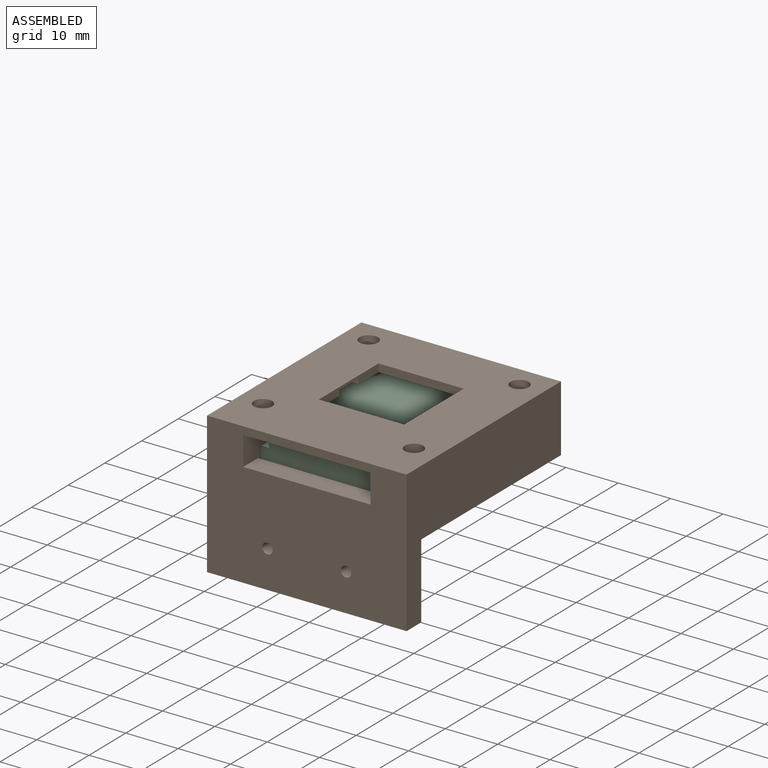
[diagram: assembled view]
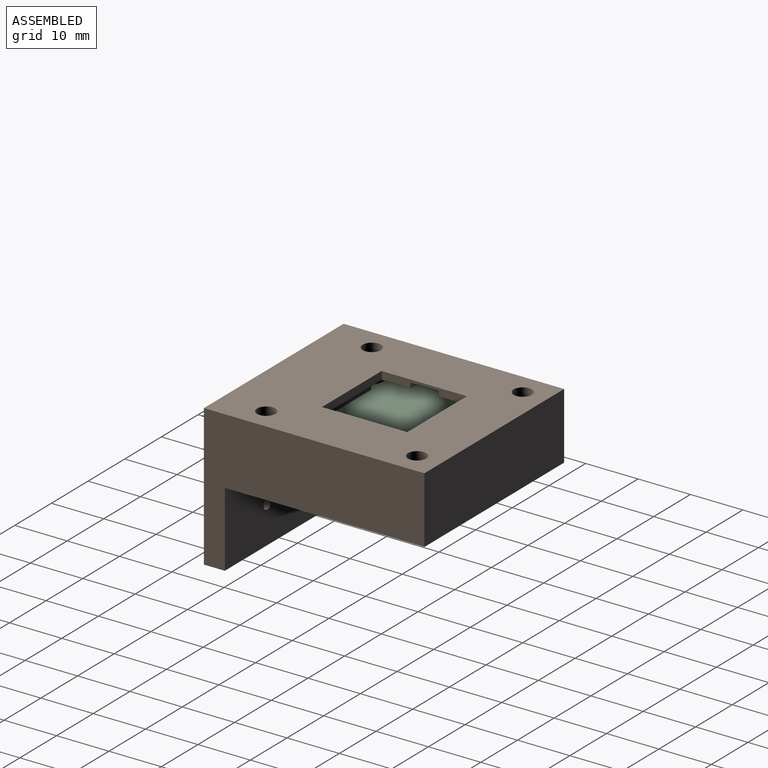
[diagram: assembled view, second angle]
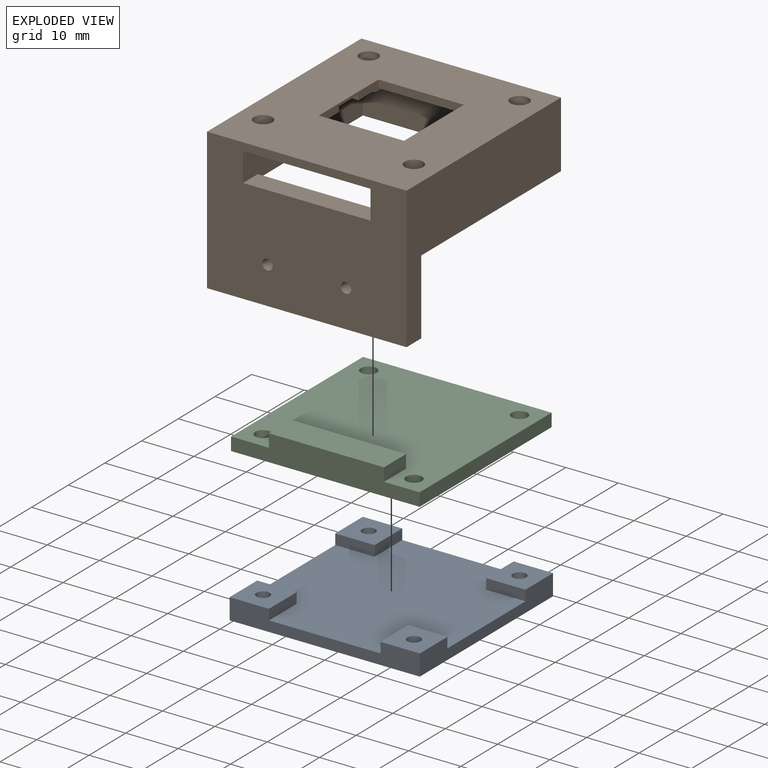
[diagram: exploded view]
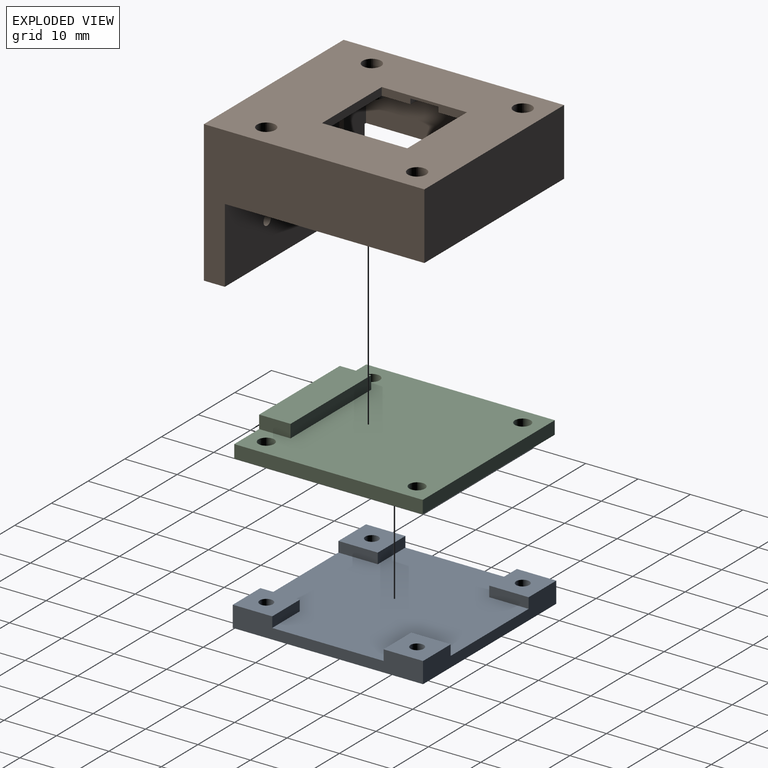
[diagram: exploded view, second angle]
ASSEMBLY  parts=3 mates=2
PART A: 26 faces, bbox 36.3x36.3x4 mm
  f0: plane 36.32x36.32mm, normal (0,0,1), area 1093mm2, adj f1,f2,f3,f4,f6,f7,f11,f13
  f1: plane 36.32x4mm, normal (0,-1,0), area 102.7mm2, adj f0,f2,f4,f5,f6,f9,f13,f14
  f2: plane 36.32x4mm, normal (1,0,0), area 102.7mm2, adj f0,f1,f3,f5,f11,f14,f23,f24
  f3: plane 36.32x4mm, normal (0,1,0), area 102.7mm2, adj f0,f2,f4,f5,f16,f19,f21,f24
  f4: plane 36.32x4mm, normal (-1,0,0), area 102.7mm2, adj f0,f1,f3,f5,f7,f9,f18,f19
  f5: plane 36.32x36.32mm, normal (0,0,-1), area 1319.3mm2, adj f1,f2,f3,f4
  f6: plane 7.52x2mm, normal (1,0,0), area 15mm2, adj f0,f1,f7,f9
  f7: plane 7.52x2mm, normal (0,1,0), area 15mm2, adj f0,f4,f6,f9
  f8: cylinder r=1.25mm len=2.5mm, axis (0,0,-1), area 15.7mm2, adj f9,f10
  f9: plane 7.52x7.52mm, normal (0,0,1), area 51.7mm2, adj f1,f4,f6,f7,f8
  f10: plane 2.5x2.5mm, normal (0,0,1), area 4.9mm2, adj f8
  f11: plane 7.52x2mm, normal (0,1,0), area 15mm2, adj f0,f2,f13,f14
  f12: cylinder r=1.25mm len=2.5mm, axis (0,0,-1), area 15.7mm2, adj f14,f15
  f13: plane 7.52x2mm, normal (-1,0,0), area 15mm2, adj f0,f1,f11,f14
  f14: plane 7.52x7.52mm, normal (0,0,1), area 51.7mm2, adj f1,f2,f11,f12,f13
  f15: plane 2.5x2.5mm, normal (0,0,1), area 4.9mm2, adj f12
  f16: plane 7.52x2mm, normal (1,0,0), area 15mm2, adj f0,f3,f18,f19
  f17: cylinder r=1.25mm len=2.5mm, axis (0,0,-1), area 15.7mm2, adj f19,f20
  f18: plane 7.52x2mm, normal (0,-1,0), area 15mm2, adj f0,f4,f16,f19
  f19: plane 7.52x7.52mm, normal (0,0,1), area 51.7mm2, adj f3,f4,f16,f17,f18
  f20: plane 2.5x2.5mm, normal (0,0,1), area 4.9mm2, adj f17
  f21: plane 7.52x2mm, normal (-1,0,0), area 15mm2, adj f0,f3,f23,f24
  f22: cylinder r=1.25mm len=2.5mm, axis (0,0,-1), area 15.7mm2, adj f24,f25
  f23: plane 7.52x2mm, normal (0,-1,0), area 15mm2, adj f0,f2,f21,f24
  f24: plane 7.52x7.52mm, normal (0,0,1), area 51.7mm2, adj f2,f3,f21,f22,f23
  f25: plane 2.5x2.5mm, normal (0,0,1), area 4.9mm2, adj f22
PART B: 49 faces, bbox 38.1x42.1x27 mm
  f0: plane 7.44x6.01mm, normal (0,1,0), area 44.7mm2, adj f6,f8,f38,f39
  f1: plane 7.44x6.01mm, normal (0,1,0), area 44.7mm2, adj f3,f5,f36,f39
  f2: plane 41.21x36.32mm, normal (0,0,-1), area 1002.1mm2, adj f3,f4,f6,f7,f9,f10,f12,f13
  f3: plane 11.2x8.65mm, normal (1,0,0), area 46.1mm2, adj f1,f2,f5,f32,f39,f43,f44,f45
  f4: plane 3.76x3.76mm, normal (0,1,0), area 14.1mm2, adj f2,f5,f32,f36
  f5: plane 6.01x6.01mm, normal (0,0,-1), area 25.4mm2, adj f1,f3,f4,f31,f32,f36
  f6: plane 11.2x8.65mm, normal (-1,0,0), area 46.1mm2, adj f0,f2,f8,f33,f39,f43,f44,f45
  f7: plane 3.76x3.76mm, normal (0,1,0), area 14.1mm2, adj f2,f8,f33,f38
  f8: plane 6.01x6.01mm, normal (0,0,-1), area 25.4mm2, adj f0,f6,f7,f30,f33,f38
  f9: plane 3.76x3.76mm, normal (0,-1,0), area 14.1mm2, adj f2,f11,f34,f38
  f10: plane 3.76x3.76mm, normal (-1,0,0), area 14.1mm2, adj f2,f11,f34,f37
  f11: plane 6.01x6.01mm, normal (0,0,-1), area 25.4mm2, adj f9,f10,f29,f34,f37,f38
  f12: plane 3.76x3.76mm, normal (0,-1,0), area 14.1mm2, adj f2,f14,f35,f36
  f13: plane 3.76x3.76mm, normal (1,0,0), area 14.1mm2, adj f2,f14,f35,f37
  f14: plane 6.01x6.01mm, normal (0,0,-1), area 25.4mm2, adj f12,f13,f28,f35,f36,f37
  f15: plane 42.1x27.01mm, normal (-1,0,0), area 592.3mm2, adj f17,f39,f42,f44,f45,f46
  f16: plane 42.1x27.01mm, normal (1,0,0), area 592.3mm2, adj f17,f39,f42,f44,f45,f46
  f17: plane 38.1x12.71mm, normal (0,1,0), area 484.2mm2, adj f15,f16,f39,f42
  f18: plane 16.28x1.51mm, normal (1,0,0), area 19.2mm2, adj f2,f19,f21,f22,f27,f41,f42
  f19: plane 1x0.81mm, normal (0,-1,0), area 0.8mm2, adj f2,f18,f20,f41
  f20: cylinder r=2.67mm len=5.33mm, axis (0,0,-1), area 8.4mm2, adj f2,f19,f21,f41
  f21: plane 1x0.81mm, normal (0,1,0), area 0.8mm2, adj f2,f18,f20,f41
  f22: plane 16.28x1.51mm, normal (0,1,0), area 24.6mm2, adj f2,f18,f23,f42
  f23: plane 16.28x1.51mm, normal (-1,0,0), area 19.2mm2, adj f2,f22,f24,f26,f27,f40,f42
  f24: plane 1x0.81mm, normal (0,1,0), area 0.8mm2, adj f2,f23,f25,f40
  f25: cylinder r=2.67mm len=5.33mm, axis (0,0,-1), area 8.4mm2, adj f2,f24,f26,f40
  f26: plane 1x0.81mm, normal (0,-1,0), area 0.8mm2, adj f2,f23,f25,f40
  f27: plane 16.28x1.51mm, normal (0,-1,0), area 24.6mm2, adj f2,f18,f23,f42
  f28: cylinder r=1.75mm len=5.27mm, axis (0,0,-1), area 57.9mm2, adj f14,f42
  f29: cylinder r=1.75mm len=5.27mm, axis (0,0,-1), area 57.9mm2, adj f11,f42
  f30: cylinder r=1.75mm len=5.27mm, axis (0,0,-1), area 57.9mm2, adj f8,f42
  f31: cylinder r=1.75mm len=5.27mm, axis (0,0,-1), area 57.9mm2, adj f5,f42
  f32: cylinder r=2.25mm len=3.76mm, axis (0,0,1), area 13.3mm2, adj f2,f3,f4,f5
  f33: cylinder r=2.25mm len=3.76mm, axis (0,0,1), area 13.3mm2, adj f2,f6,f7,f8
  f34: cylinder r=2.25mm len=3.76mm, axis (0,0,1), area 13.3mm2, adj f2,f9,f10,f11
  f35: cylinder r=2.25mm len=3.76mm, axis (0,0,1), area 13.3mm2, adj f2,f12,f13,f14
  f36: plane 36.32x11.2mm, normal (1,0,0), area 361.7mm2, adj f1,f2,f4,f5,f12,f14,f37,f39
  f37: plane 36.32x11.2mm, normal (0,-1,0), area 361.7mm2, adj f2,f10,f11,f13,f14,f36,f38,f39
  f38: plane 36.32x11.2mm, normal (-1,0,0), area 361.7mm2, adj f0,f2,f7,f8,f9,f11,f37,f39
  f39: plane 38.1x38.1mm, normal (0,0,-1), area 110.7mm2, adj f0,f1,f3,f6,f15,f16,f17,f36
  f40: plane 5.33x3.48mm, normal (0,0,-1), area 15.5mm2, adj f23,f24,f25,f26
  f41: plane 5.33x3.48mm, normal (0,0,-1), area 15.5mm2, adj f18,f19,f20,f21
  f42: plane 42.1x38.1mm, normal (0,0,1), area 1300.4mm2, adj f15,f16,f17,f18,f22,f23,f27,f28
  f43: plane 24.31x4mm, normal (0,0,1), area 97.2mm2, adj f3,f6,f44,f45
  f44: plane 38.1x27.01mm, normal (0,-1,0), area 889mm2, adj f2,f3,f6,f15,f16,f42,f43,f46
  f45: plane 38.1x20mm, normal (0,1,0), area 677.1mm2, adj f3,f6,f15,f16,f39,f43,f46,f47
  f46: plane 38.1x4mm, normal (0,0,-1), area 152.4mm2, adj f15,f16,f44,f45
  f47: cylinder r=1mm len=4mm, axis (0,1,0), area 25.1mm2, adj f44,f45
  f48: cylinder r=1mm len=4mm, axis (0,1,0), area 25.1mm2, adj f44,f45
PART C: 14 faces, bbox 36x36x5 mm
  f0: plane 36x2.5mm, normal (-1,0,0), area 90mm2, adj f1,f6,f8,f9
  f1: plane 36x5mm, normal (0,-1,0), area 145mm2, adj f0,f2,f8,f9,f10,f11,f13
  f2: plane 36x2.5mm, normal (1,0,0), area 90mm2, adj f1,f6,f8,f9
  f3: cylinder r=1.5mm len=3mm, axis (0,0,-1), area 23.6mm2, adj f8,f9
  f4: cylinder r=1.5mm len=3mm, axis (0,0,-1), area 23.6mm2, adj f8,f9
  f5: cylinder r=1.5mm len=3mm, axis (0,0,-1), area 23.6mm2, adj f8,f9
  f6: plane 36x2.5mm, normal (0,1,0), area 90mm2, adj f0,f2,f8,f9
  f7: cylinder r=1.5mm len=3mm, axis (0,0,-1), area 23.6mm2, adj f8,f9
  f8: plane 36x36mm, normal (0,0,1), area 1135.7mm2, adj f0,f1,f2,f3,f4,f5,f6,f7
  f9: plane 36x36mm, normal (0,0,-1), area 1267.7mm2, adj f0,f1,f2,f3,f4,f5,f6,f7
  f10: plane 6x2.5mm, normal (-1,0,0), area 15mm2, adj f1,f8,f12,f13
  f11: plane 6x2.5mm, normal (1,0,0), area 15mm2, adj f1,f8,f12,f13
  f12: plane 22x2.5mm, normal (0,1,0), area 55mm2, adj f8,f10,f11,f13
  f13: plane 22x6mm, normal (0,0,1), area 132mm2, adj f1,f10,f11,f12
PLACE A t=(-2.66,-2.33,-9.5)mm
PLACE B t=(-2.66,-2.34,-1.24)mm
PLACE C t=(-2.66,-2.33,-7.5)mm
MATE fastened B.f28 <-> C.f5  axis (0,0,-1) through (-17.06,12.07,-5)mm
MATE fastened A.f12 <-> C.f3  axis (0,0,1) through (11.74,-16.73,-7.5)mm
